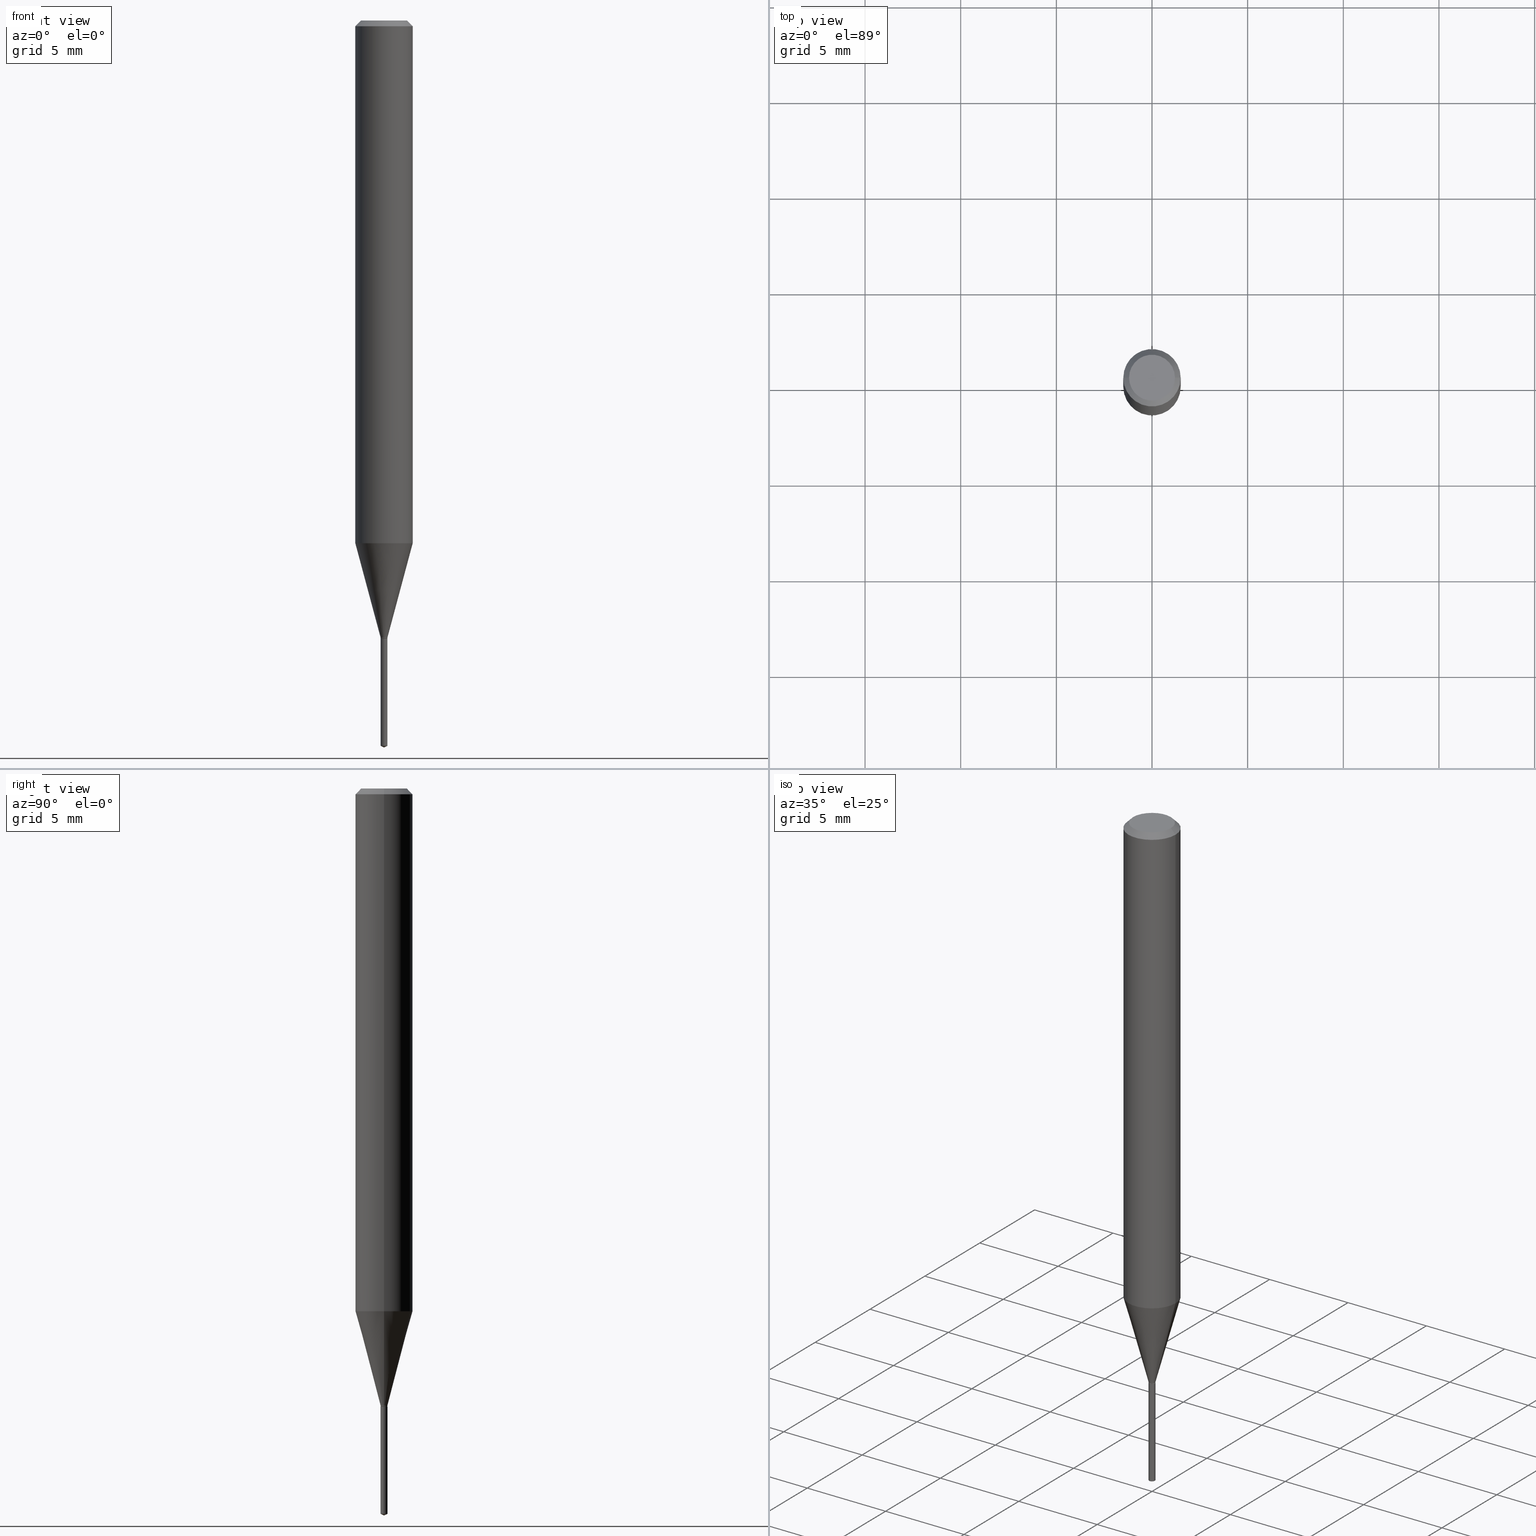
[diagram: canonical four-view strip — front | top / right | iso, engineering-drawing reading convention]
A machine part, canonical four-view strip (front | top / right | iso — engineering-drawing reading convention). The complete STEP part file that produces these views, byte-faithful:
ISO-10303-21;
HEADER;
FILE_DESCRIPTION (( 'STEP AP203' ),
    '1' );
FILE_NAME ('07755.STEP',
    '2024-04-24T02:21:00',
    ( '' ),
    ( '' ),
    'SwSTEP 2.0',
    'SolidWorks 2023',
    '' );
FILE_SCHEMA (( 'CONFIG_CONTROL_DESIGN' ));
ENDSEC;

DATA;
#1 = PLANE ( 'NONE',  #249 ) ;
#2 = CONICAL_SURFACE ( 'NONE', #334, 0.006599999999999999964, 0.7853981633975496424 ) ;
#3 = ORIENTED_EDGE ( 'NONE', *, *, #359, .T. ) ;
#4 = EDGE_CURVE ( 'NONE', #458, #391, #385, .T. ) ;
#5 = APPROVAL_ROLE ( '' ) ;
#6 = DIRECTION ( 'NONE',  ( 1.000000000000000000, -6.982962677686266711E-15, 0.000000000000000000 ) ) ;
#7 = ORIENTED_EDGE ( 'NONE', *, *, #4, .T. ) ;
#8 = DIRECTION ( 'NONE',  ( -2.445468806185136597E-29, 3.491481338843145583E-15, 1.000000000000000000 ) ) ;
#9 = DIRECTION ( 'NONE',  ( -2.445468806185136597E-29, 3.491481338843145583E-15, 1.000000000000000000 ) ) ;
#10 = PERSON_AND_ORGANIZATION ( #418, #379 ) ;
#11 = DIRECTION ( 'NONE',  ( 0.2588190451025213501, 1.565188264969621968E-15, 0.9659258262890682012 ) ) ;
#12 = LENGTH_MEASURE_WITH_UNIT ( LENGTH_MEASURE( 0.02539999999999999897 ), #371 );
#13 = ORIENTED_EDGE ( 'NONE', *, *, #37, .T. ) ;
#14 = LINE ( 'NONE', #215, #100 ) ;
#15 = PLANE ( 'NONE',  #252 ) ;
#16 = ORIENTED_EDGE ( 'NONE', *, *, #239, .T. ) ;
#17 = CIRCLE ( 'NONE', #293, 0.007100000000000000408 ) ;
#18 = VECTOR ( 'NONE', #11, 39.37007874015747433 ) ;
#19 = CARTESIAN_POINT ( 'NONE',  ( 5.044853423900365638E-17, 0.007099999999995559516, -1.271700000000000053 ) ) ;
#20 = CYLINDRICAL_SURFACE ( 'NONE', #74, 0.007100000000000000408 ) ;
#21 = VERTEX_POINT ( 'NONE', #59 ) ;
#22 = CARTESIAN_POINT ( 'NONE',  ( 0.006599999999999999964, -4.486204372279557365E-15, -1.271700000000000053 ) ) ;
#23 = AXIS2_PLACEMENT_3D ( 'NONE', #49, #174, #237 ) ;
#24 = EDGE_CURVE ( 'NONE', #92, #314, #276, .T. ) ;
#25 = DATE_AND_TIME ( #102, #36 ) ;
#26 = DIRECTION ( 'NONE',  ( -2.445468806185136597E-29, 3.491481338843145583E-15, 1.000000000000000000 ) ) ;
#27 = APPROVAL_PERSON_ORGANIZATION ( #77, #64, #172 ) ;
#28 = DIRECTION ( 'NONE',  ( -6.982962677686267499E-15, -1.000000000000000000, 3.520397390770578510E-15 ) ) ;
#29 = DIRECTION ( 'NONE',  ( -2.438088387897960049E-29, 3.491481338843145188E-15, 1.000000000000000000 ) ) ;
#30 = ADVANCED_FACE ( 'NONE', ( #108 ), #442, .T. ) ;
#31 = FACE_OUTER_BOUND ( 'NONE', #361, .T. ) ;
#32 = APPLICATION_CONTEXT ( 'configuration controlled 3d designs of mechanical parts and assemblies' ) ;
#33 = CARTESIAN_POINT ( 'NONE',  ( 3.109902680825638129E-29, -4.440116818606828093E-15, -1.271700000000000053 ) ) ;
#34 = CIRCLE ( 'NONE', #186, 0.007100000000000000408 ) ;
#35 = EDGE_CURVE ( 'NONE', #314, #21, #280, .T. ) ;
#36 = LOCAL_TIME ( 22, 21, 0.000000000000000000, #315 ) ;
#37 = EDGE_CURVE ( 'NONE', #171, #458, #98, .T. ) ;
#38 = DIRECTION ( 'NONE',  ( -2.445468806185136597E-29, 3.491481338843145583E-15, 1.000000000000000000 ) ) ;
#39 = ORIENTED_EDGE ( 'NONE', *, *, #184, .T. ) ;
#40 = EDGE_CURVE ( 'NONE', #391, #92, #309, .T. ) ;
#41 = ADVANCED_BREP_SHAPE_REPRESENTATION ( '07755', ( #311, #327, #217 ), #387 ) ;
#42 = PERSON_AND_ORGANIZATION ( #418, #379 ) ;
#43 = CIRCLE ( 'NONE', #106, 0.007100000000000000408 ) ;
#44 = AXIS2_PLACEMENT_3D ( 'NONE', #490, #426, #158 ) ;
#45 = DIRECTION ( 'NONE',  ( -0.2588190451025213501, 5.211531920934551042E-15, 0.9659258262890682012 ) ) ;
#46 = DIRECTION ( 'NONE',  ( 1.000000000000000000, -6.982962677686215435E-15, 0.000000000000000000 ) ) ;
#47 = DIRECTION ( 'NONE',  ( -6.982962677686265922E-15, -1.000000000000000000, 0.000000000000000000 ) ) ;
#48 = VERTEX_POINT ( 'NONE', #120 ) ;
#49 = CARTESIAN_POINT ( 'NONE',  ( 8.265746106709734507E-48, -1.180129479067563789E-33, -3.380025165646692144E-19 ) ) ;
#50 = LINE ( 'NONE', #135, #335 ) ;
#51 = ORIENTED_EDGE ( 'NONE', *, *, #425, .F. ) ;
#52 = CARTESIAN_POINT ( 'NONE',  ( 3.104767196332649259E-29, -4.432784707795257778E-15, -1.269600000000000062 ) ) ;
#53 = CARTESIAN_POINT ( 'NONE',  ( 2.888098660104663766E-31, -4.123439461173779647E-17, -0.01181000000000007044 ) ) ;
#54 = ORIENTED_EDGE ( 'NONE', *, *, #408, .F. ) ;
#55 = AXIS2_PLACEMENT_3D ( 'NONE', #469, #58, #332 ) ;
#56 = APPROVAL_DATE_TIME ( #202, #64 ) ;
#57 = DIRECTION ( 'NONE',  ( -2.445468806185136597E-29, 3.491481338843145583E-15, 1.000000000000000000 ) ) ;
#58 = DIRECTION ( 'NONE',  ( -2.445451076271118923E-29, 3.491506729089142946E-15, 1.000000000000000000 ) ) ;
#59 = CARTESIAN_POINT ( 'NONE',  ( 0.05905000000000013710, -4.168200114187600418E-15, -1.075719960546796861 ) ) ;
#60 = CC_DESIGN_PERSON_AND_ORGANIZATION_ASSIGNMENT ( #42, #355, ( #271 ) ) ;
#61 = VECTOR ( 'NONE', #220, 39.37007874015748143 ) ;
#62 = AXIS2_PLACEMENT_3D ( 'NONE', #390, #370, #356 ) ;
#63 = DIMENSIONAL_EXPONENTS ( 1.000000000000000000, 0.000000000000000000, 0.000000000000000000, 0.000000000000000000, 0.000000000000000000, 0.000000000000000000, 0.000000000000000000 ) ;
#64 = APPROVAL ( #350, 'UNSPECIFIED' ) ;
#65 = CARTESIAN_POINT ( 'NONE',  ( -4.957903501154139640E-17, -0.007100000000004440433, -1.271700000000000053 ) ) ;
#66 = PERSON_AND_ORGANIZATION_ROLE ( 'creator' ) ;
#67 = ORIENTED_EDGE ( 'NONE', *, *, #440, .F. ) ;
#68 = DIRECTION ( 'NONE',  ( -2.445468806185136597E-29, 3.491481338843145583E-15, 1.000000000000000000 ) ) ;
#69 = LINE ( 'NONE', #226, #383 ) ;
#70 = DIRECTION ( 'NONE',  ( 1.000000000000000000, -6.982962677686215435E-15, 0.000000000000000000 ) ) ;
#71 = PRODUCT ( '07755', '07755', '', ( #246 ) ) ;
#72 = APPROVAL_DATE_TIME ( #342, #268 ) ;
#73 = VERTEX_POINT ( 'NONE', #305 ) ;
#74 = AXIS2_PLACEMENT_3D ( 'NONE', #460, #431, #47 ) ;
#75 = EDGE_LOOP ( 'NONE', ( #212, #432 ) ) ;
#76 = PRODUCT_DEFINITION_SHAPE ( 'NONE', 'NONE',  #286 ) ;
#77 = PERSON_AND_ORGANIZATION ( #418, #379 ) ;
#78 = ADVANCED_FACE ( 'NONE', ( #273 ), #421, .T. ) ;
#79 = ORIENTED_EDGE ( 'NONE', *, *, #411, .T. ) ;
#80 = CARTESIAN_POINT ( 'NONE',  ( 3.108679946422545888E-29, -4.438371077937407378E-15, -1.271200000000000108 ) ) ;
#81 = EDGE_LOOP ( 'NONE', ( #54, #16, #7, #346 ) ) ;
#82 = CARTESIAN_POINT ( 'NONE',  ( -0.05905000000000013710, -3.336280682603885216E-15, -1.075719960546796861 ) ) ;
#83 = FACE_OUTER_BOUND ( 'NONE', #384, .T. ) ;
#84 = VECTOR ( 'NONE', #175, 39.37007874015748143 ) ;
#85 =( NAMED_UNIT ( * ) SI_UNIT ( $, .STERADIAN. ) SOLID_ANGLE_UNIT ( ) );
#86 = EDGE_LOOP ( 'NONE', ( #157, #424, #79, #397 ) ) ;
#87 = EDGE_CURVE ( 'NONE', #263, #151, #104, .T. ) ;
#88 = DIRECTION ( 'NONE',  ( 2.445451076271118923E-29, -3.491506729089142552E-15, -1.000000000000000000 ) ) ;
#89 = EDGE_LOOP ( 'NONE', ( #193, #124, #232 ) ) ;
#90 = CC_DESIGN_PERSON_AND_ORGANIZATION_ASSIGNMENT ( #345, #146, ( #71 ) ) ;
#91 = DATE_AND_TIME ( #210, #439 ) ;
#92 = VERTEX_POINT ( 'NONE', #413 ) ;
#93 = FACE_OUTER_BOUND ( 'NONE', #75, .T. ) ;
#94 =( NAMED_UNIT ( * ) PLANE_ANGLE_UNIT ( ) SI_UNIT ( $, .RADIAN. ) );
#95 = EDGE_LOOP ( 'NONE', ( #317, #288, #481, #285 ) ) ;
#96 = CONICAL_SURFACE ( 'NONE', #255, 84.42940631927135087, 1.134464013796302462 ) ;
#97 = CC_DESIGN_APPROVAL ( #64, ( #271 ) ) ;
#98 = LINE ( 'NONE', #22, #61 ) ;
#99 = DIRECTION ( 'NONE',  ( -2.445468806185136877E-29, 3.491481338843145188E-15, 1.000000000000000000 ) ) ;
#100 = VECTOR ( 'NONE', #369, 39.37007874015748143 ) ;
#101 = VECTOR ( 'NONE', #434, 39.37007874015748143 ) ;
#102 = CALENDAR_DATE ( 2024, 23, 4 ) ;
#103 = ADVANCED_FACE ( 'NONE', ( #31 ), #192, .F. ) ;
#104 = LINE ( 'NONE', #147, #466 ) ;
#105 = ORIENTED_EDGE ( 'NONE', *, *, #341, .F. ) ;
#106 = AXIS2_PLACEMENT_3D ( 'NONE', #80, #122, #242 ) ;
#107 = AXIS2_PLACEMENT_3D ( 'NONE', #270, #485, #143 ) ;
#108 = FACE_OUTER_BOUND ( 'NONE', #265, .T. ) ;
#109 = ORIENTED_EDGE ( 'NONE', *, *, #110, .T. ) ;
#110 = EDGE_CURVE ( 'NONE', #458, #479, #43, .T. ) ;
#111 = CARTESIAN_POINT ( 'NONE',  ( -0.007100000000000000408, -4.385129358627364316E-15, -1.271200000000000108 ) ) ;
#112 = CARTESIAN_POINT ( 'NONE',  ( 3.104767196332649259E-29, -4.432784707795257778E-15, -1.269600000000000062 ) ) ;
#113 = VERTEX_POINT ( 'NONE', #389 ) ;
#114 = DIRECTION ( 'NONE',  ( -6.982962677686267499E-15, -1.000000000000000000, 3.520397390770578510E-15 ) ) ;
#115 = FACE_OUTER_BOUND ( 'NONE', #372, .T. ) ;
#116 = FACE_OUTER_BOUND ( 'NONE', #414, .T. ) ;
#117 = CIRCLE ( 'NONE', #23, 0.04724000000000000421 ) ;
#118 = CALENDAR_DATE ( 2024, 23, 4 ) ;
#119 = CIRCLE ( 'NONE', #107, 0.007100000000000000408 ) ;
#120 = CARTESIAN_POINT ( 'NONE',  ( -0.04724000000000000421, 3.504923541997677355E-16, -3.380025165670481712E-19 ) ) ;
#121 = ORIENTED_EDGE ( 'NONE', *, *, #35, .T. ) ;
#122 = DIRECTION ( 'NONE',  ( -2.445468806185136597E-29, 3.491481338843145583E-15, 1.000000000000000000 ) ) ;
#123 = LINE ( 'NONE', #132, #18 ) ;
#124 = ORIENTED_EDGE ( 'NONE', *, *, #484, .T. ) ;
#125 = CONICAL_SURFACE ( 'NONE', #336, 84.42940631927135087, 1.134464013796302462 ) ;
#126 = DIRECTION ( 'NONE',  ( 1.000000000000000000, 0.000000000000000000, 0.000000000000000000 ) ) ;
#127 = VERTEX_POINT ( 'NONE', #169 ) ;
#128 = EDGE_CURVE ( 'NONE', #113, #48, #117, .T. ) ;
#129 = ORIENTED_EDGE ( 'NONE', *, *, #443, .T. ) ;
#130 = ORIENTED_EDGE ( 'NONE', *, *, #37, .F. ) ;
#131 = CARTESIAN_POINT ( 'NONE',  ( 3.109902680825638129E-29, -4.440116818606828093E-15, -1.271700000000000053 ) ) ;
#132 = CARTESIAN_POINT ( 'NONE',  ( 0.007100000000000000408, -4.482363742806830057E-15, -1.269600000000000062 ) ) ;
#133 = ORIENTED_EDGE ( 'NONE', *, *, #484, .F. ) ;
#134 = CC_DESIGN_PERSON_AND_ORGANIZATION_ASSIGNMENT ( #10, #464, ( #271 ) ) ;
#135 = CARTESIAN_POINT ( 'NONE',  ( 0.05905000000000006771, -4.123439461173745257E-16, 2.879382386107503723E-30 ) ) ;
#136 = VECTOR ( 'NONE', #155, 39.37007874015748143 ) ;
#137 = LOCAL_TIME ( 22, 21, 0.000000000000000000, #420 ) ;
#138 = AXIS2_PLACEMENT_3D ( 'NONE', #412, #68, #190 ) ;
#139 = EDGE_CURVE ( 'NONE', #357, #148, #299, .T. ) ;
#140 = CONICAL_SURFACE ( 'NONE', #300, 0.006599999999999999964, 0.7853981633975496424 ) ;
#141 = EDGE_CURVE ( 'NONE', #151, #142, #14, .T. ) ;
#142 = VERTEX_POINT ( 'NONE', #19 ) ;
#143 = DIRECTION ( 'NONE',  ( -6.982962677686265922E-15, -1.000000000000000000, 0.000000000000000000 ) ) ;
#144 = CARTESIAN_POINT ( 'NONE',  ( 0.006599999999999999964, -4.486204372279557365E-15, -1.271700000000000053 ) ) ;
#145 = ADVANCED_FACE ( 'NONE', ( #329 ), #2, .T. ) ;
#146 = PERSON_AND_ORGANIZATION_ROLE ( 'design_owner' ) ;
#147 = CARTESIAN_POINT ( 'NONE',  ( 3.658684844895993065E-29, -5.223578639838595725E-15, -1.496099999999999985 ) ) ;
#148 = VERTEX_POINT ( 'NONE', #227 ) ;
#149 = DIRECTION ( 'NONE',  ( 1.000000000000000000, -6.982962677686215435E-15, 0.000000000000000000 ) ) ;
#150 = DIRECTION ( 'NONE',  ( -2.445451076271118923E-29, 3.491506729089142946E-15, 1.000000000000000000 ) ) ;
#151 = VERTEX_POINT ( 'NONE', #294 ) ;
#152 = DIRECTION ( 'NONE',  ( -6.328713451373333880E-15, -0.9063077870366434974, 0.4226182617407132636 ) ) ;
#153 = APPROVAL_STATUS ( 'not_yet_approved' ) ;
#154 = DIRECTION ( 'NONE',  ( 1.000000000000000000, -6.982962677686265922E-15, 4.876176775795935793E-29 ) ) ;
#155 = DIRECTION ( 'NONE',  ( 0.7071067811865453523, -7.319954787623248157E-15, -0.7071067811865496822 ) ) ;
#156 = CALENDAR_DATE ( 2024, 23, 4 ) ;
#157 = ORIENTED_EDGE ( 'NONE', *, *, #184, .F. ) ;
#158 = DIRECTION ( 'NONE',  ( 1.000000000000000000, -6.982962677686266711E-15, 4.876176775795935793E-29 ) ) ;
#159 = ADVANCED_FACE ( 'NONE', ( #480 ), #125, .T. ) ;
#160 = AXIS2_PLACEMENT_3D ( 'NONE', #52, #38, #209 ) ;
#161 = SECURITY_CLASSIFICATION ( '', '', #468 ) ;
#162 = CONICAL_SURFACE ( 'NONE', #401, 0.05904999999999999832, 0.7853981633974452814 ) ;
#163 = CARTESIAN_POINT ( 'NONE',  ( 0.000000000000000000, 0.000000000000000000, 0.000000000000000000 ) ) ;
#164 = EDGE_LOOP ( 'NONE', ( #283, #274, #195, #301 ) ) ;
#165 = DIRECTION ( 'NONE',  ( 1.000000000000000000, -6.982962677686265133E-15, 0.000000000000000000 ) ) ;
#166 = PERSON_AND_ORGANIZATION ( #418, #379 ) ;
#167 = ORIENTED_EDGE ( 'NONE', *, *, #476, .T. ) ;
#168 = DIRECTION ( 'NONE',  ( 1.000000000000000000, -6.982962677686265133E-15, 0.000000000000000000 ) ) ;
#169 = CARTESIAN_POINT ( 'NONE',  ( -0.006599999999999999964, -4.390571770872550711E-15, -1.271700000000000053 ) ) ;
#170 = CARTESIAN_POINT ( 'NONE',  ( 2.888098660104663766E-31, -4.123439461173779647E-17, -0.01181000000000007044 ) ) ;
#171 = VERTEX_POINT ( 'NONE', #144 ) ;
#172 = APPROVAL_ROLE ( '' ) ;
#173 = AXIS2_PLACEMENT_3D ( 'NONE', #269, #347, #489 ) ;
#174 = DIRECTION ( 'NONE',  ( -2.445468806185136597E-29, 3.491481338843145583E-15, 1.000000000000000000 ) ) ;
#175 = DIRECTION ( 'NONE',  ( -0.7071067811865453523, 2.468850131082234184E-15, -0.7071067811865496822 ) ) ;
#176 = CONICAL_SURFACE ( 'NONE', #441, 0.05904999999999999832, 0.7853981633974452814 ) ;
#177 = ORIENTED_EDGE ( 'NONE', *, *, #206, .F. ) ;
#178 = CALENDAR_DATE ( 2024, 23, 4 ) ;
#179 = ORIENTED_EDGE ( 'NONE', *, *, #236, .T. ) ;
#180 = ADVANCED_FACE ( 'NONE', ( #454 ), #231, .T. ) ;
#181 = DIRECTION ( 'NONE',  ( -2.445468806185136597E-29, 3.491481338843145583E-15, 1.000000000000000000 ) ) ;
#182 = AXIS2_PLACEMENT_3D ( 'NONE', #163, #234, #338 ) ;
#183 = LOCAL_TIME ( 22, 21, 0.000000000000000000, #452 ) ;
#184 = EDGE_CURVE ( 'NONE', #113, #357, #416, .T. ) ;
#185 = ADVANCED_FACE ( 'NONE', ( #116 ), #1, .F. ) ;
#186 = AXIS2_PLACEMENT_3D ( 'NONE', #33, #229, #194 ) ;
#187 = CC_DESIGN_APPROVAL ( #268, ( #286 ) ) ;
#188 = DIRECTION ( 'NONE',  ( -2.445468806185136597E-29, 3.491481338843145583E-15, 1.000000000000000000 ) ) ;
#189 = DIRECTION ( 'NONE',  ( 1.000000000000000000, -6.982962677686291954E-15, 0.000000000000000000 ) ) ;
#190 = DIRECTION ( 'NONE',  ( 1.000000000000000000, -6.982962677686266711E-15, 4.876185090822587894E-29 ) ) ;
#191 = APPLICATION_PROTOCOL_DEFINITION ( 'international standard', 'config_control_design', 1994, #32 ) ;
#192 = PLANE ( 'NONE',  #258 ) ;
#193 = ORIENTED_EDGE ( 'NONE', *, *, #87, .F. ) ;
#194 = DIRECTION ( 'NONE',  ( -6.982962677686265922E-15, -1.000000000000000000, 0.000000000000000000 ) ) ;
#195 = ORIENTED_EDGE ( 'NONE', *, *, #139, .F. ) ;
#196 = ADVANCED_FACE ( 'NONE', ( #257 ), #96, .T. ) ;
#197 = CYLINDRICAL_SURFACE ( 'NONE', #44, 0.007100000000000000408 ) ;
#198 = DIRECTION ( 'NONE',  ( 1.000000000000000000, -6.982962677686215435E-15, 0.000000000000000000 ) ) ;
#199 = ORIENTED_EDGE ( 'NONE', *, *, #365, .F. ) ;
#200 = AXIS2_PLACEMENT_3D ( 'NONE', #240, #8, #475 ) ;
#201 = CC_DESIGN_APPROVAL ( #488, ( #161 ) ) ;
#202 = DATE_AND_TIME ( #178, #310 ) ;
#203 = DIRECTION ( 'NONE',  ( -0.7071067811866191821, 7.493145998870612907E-15, 0.7071067811864758523 ) ) ;
#204 = ORIENTED_EDGE ( 'NONE', *, *, #139, .T. ) ;
#205 = DIRECTION ( 'NONE',  ( -2.445468806185136597E-29, 3.491481338843145583E-15, 1.000000000000000000 ) ) ;
#206 = EDGE_CURVE ( 'NONE', #235, #142, #34, .T. ) ;
#207 = LINE ( 'NONE', #330, #353 ) ;
#208 = EDGE_LOOP ( 'NONE', ( #199, #465, #13, #244 ) ) ;
#209 = DIRECTION ( 'NONE',  ( 1.000000000000000000, -6.982962677686291954E-15, 0.000000000000000000 ) ) ;
#210 = CALENDAR_DATE ( 2024, 23, 4 ) ;
#211 = DIRECTION ( 'NONE',  ( -2.445468806185136597E-29, 3.491481338843145583E-15, 1.000000000000000000 ) ) ;
#212 = ORIENTED_EDGE ( 'NONE', *, *, #206, .T. ) ;
#213 = COORDINATED_UNIVERSAL_TIME_OFFSET ( 5, 0, .BEHIND. ) ;
#214 = AXIS2_PLACEMENT_3D ( 'NONE', #340, #150, #486 ) ;
#215 = CARTESIAN_POINT ( 'NONE',  ( 5.044853423899820215E-17, 0.007099999999995559516, -1.271700000000000053 ) ) ;
#216 = DIRECTION ( 'NONE',  ( 2.445468806185136597E-29, -3.491481338843145583E-15, -1.000000000000000000 ) ) ;
#217 = AXIS2_PLACEMENT_3D ( 'NONE', #321, #396, #126 ) ;
#218 = EDGE_LOOP ( 'NONE', ( #259, #322, #487, #130 ) ) ;
#219 = DIRECTION ( 'NONE',  ( -2.445468806185136597E-29, 3.491481338843145583E-15, 1.000000000000000000 ) ) ;
#220 = DIRECTION ( 'NONE',  ( 0.7071067811866191821, -2.468850131083007662E-15, 0.7071067811864758523 ) ) ;
#221 = AXIS2_PLACEMENT_3D ( 'NONE', #319, #211, #363 ) ;
#222 = APPROVAL_DATE_TIME ( #25, #488 ) ;
#223 = ADVANCED_FACE ( 'NONE', ( #449 ), #228, .T. ) ;
#224 = CC_DESIGN_DATE_AND_TIME_ASSIGNMENT ( #272, #381, ( #286 ) ) ;
#225 = APPROVAL_PERSON_ORGANIZATION ( #278, #488, #5 ) ;
#226 = CARTESIAN_POINT ( 'NONE',  ( 3.658639355209220542E-29, -5.223643217390265926E-15, -1.496099999999999985 ) ) ;
#227 = CARTESIAN_POINT ( 'NONE',  ( -0.05904999999999999832, -1.478969795874641529E-15, -0.01181000000000007044 ) ) ;
#228 = CONICAL_SURFACE ( 'NONE', #400, 0.007100000000000000408, 0.2617993877991500740 ) ;
#229 = DIRECTION ( 'NONE',  ( -2.445451076271118923E-29, 3.491506729089142946E-15, 1.000000000000000000 ) ) ;
#230 = CIRCLE ( 'NONE', #62, 0.007100000000000000408 ) ;
#231 = CYLINDRICAL_SURFACE ( 'NONE', #173, 0.007100000000000000408 ) ;
#232 = ORIENTED_EDGE ( 'NONE', *, *, #476, .F. ) ;
#233 = DIRECTION ( 'NONE',  ( -1.000000000000000000, 6.982962677686266711E-15, 0.000000000000000000 ) ) ;
#234 = DIRECTION ( 'NONE',  ( -2.445468806185136597E-29, 3.491481338843145583E-15, 1.000000000000000000 ) ) ;
#235 = VERTEX_POINT ( 'NONE', #451 ) ;
#236 = EDGE_CURVE ( 'NONE', #73, #235, #337, .T. ) ;
#237 = DIRECTION ( 'NONE',  ( 1.000000000000000000, -6.982962677686266711E-15, 4.876185090822587894E-29 ) ) ;
#238 = CARTESIAN_POINT ( 'NONE',  ( -0.007100000000000000408, -4.382336173556289910E-15, -1.269600000000000062 ) ) ;
#239 = EDGE_CURVE ( 'NONE', #479, #458, #17, .T. ) ;
#240 = CARTESIAN_POINT ( 'NONE',  ( 0.000000000000000000, 0.000000000000000000, 0.000000000000000000 ) ) ;
#241 = APPROVAL_STATUS ( 'not_yet_approved' ) ;
#242 = DIRECTION ( 'NONE',  ( 1.000000000000000000, -6.982962677686291954E-15, 0.000000000000000000 ) ) ;
#243 = DIRECTION ( 'NONE',  ( -1.000000000000000000, 6.982962677686266711E-15, 0.000000000000000000 ) ) ;
#244 = ORIENTED_EDGE ( 'NONE', *, *, #239, .F. ) ;
#245 = UNCERTAINTY_MEASURE_WITH_UNIT (LENGTH_MEASURE( 1.000000000000000082E-05 ), #428, 'distance_accuracy_value', 'NONE');
#246 = MECHANICAL_CONTEXT ( 'NONE', #266, 'mechanical' ) ;
#247 = ORIENTED_EDGE ( 'NONE', *, *, #141, .F. ) ;
#248 = ORIENTED_EDGE ( 'NONE', *, *, #236, .F. ) ;
#249 = AXIS2_PLACEMENT_3D ( 'NONE', #303, #29, #154 ) ;
#250 = CARTESIAN_POINT ( 'NONE',  ( 3.109902680825638129E-29, -4.440116818606828093E-15, -1.271700000000000053 ) ) ;
#251 = EDGE_CURVE ( 'NONE', #48, #113, #368, .T. ) ;
#252 = AXIS2_PLACEMENT_3D ( 'NONE', #250, #88, #402 ) ;
#253 = ORIENTED_EDGE ( 'NONE', *, *, #87, .T. ) ;
#254 = CARTESIAN_POINT ( 'NONE',  ( -0.006599999999999999964, -4.393220998046661912E-15, -1.271700000000000053 ) ) ;
#255 = AXIS2_PLACEMENT_3D ( 'NONE', #407, #377, #28 ) ;
#256 = EDGE_CURVE ( 'NONE', #142, #235, #417, .T. ) ;
#257 = FACE_OUTER_BOUND ( 'NONE', #89, .T. ) ;
#258 = AXIS2_PLACEMENT_3D ( 'NONE', #483, #433, #394 ) ;
#259 = ORIENTED_EDGE ( 'NONE', *, *, #341, .T. ) ;
#260 = DIRECTION ( 'NONE',  ( -2.445468806185136597E-29, 3.491481338843145583E-15, 1.000000000000000000 ) ) ;
#261 = DIRECTION ( 'NONE',  ( 1.000000000000000000, -6.982962677686291954E-15, 0.000000000000000000 ) ) ;
#262 = DIRECTION ( 'NONE',  ( 6.439704144416989332E-15, 0.9063077870366463840, 0.4226182617407069908 ) ) ;
#263 = VERTEX_POINT ( 'NONE', #267 ) ;
#264 = ADVANCED_FACE ( 'NONE', ( #415 ), #459, .T. ) ;
#265 = EDGE_LOOP ( 'NONE', ( #51, #121, #129, #470 ) ) ;
#266 = APPLICATION_CONTEXT ( 'configuration controlled 3d designs of mechanical parts and assemblies' ) ;
#267 = CARTESIAN_POINT ( 'NONE',  ( 3.658639355209220542E-29, -5.223643217390265926E-15, -1.496099999999999985 ) ) ;
#268 = APPROVAL ( #153, 'UNSPECIFIED' ) ;
#269 = CARTESIAN_POINT ( 'NONE',  ( 0.000000000000000000, 0.000000000000000000, 0.000000000000000000 ) ) ;
#270 = CARTESIAN_POINT ( 'NONE',  ( 3.650565541132865104E-29, -5.212051302697885877E-15, -1.492789215627099431 ) ) ;
#271 = PRODUCT_DEFINITION_FORMATION_WITH_SPECIFIED_SOURCE ( 'ANY', '', #71, .NOT_KNOWN. ) ;
#272 = DATE_AND_TIME ( #156, #183 ) ;
#273 = FACE_OUTER_BOUND ( 'NONE', #164, .T. ) ;
#274 = ORIENTED_EDGE ( 'NONE', *, *, #425, .T. ) ;
#275 = ADVANCED_FACE ( 'NONE', ( #354 ), #378, .T. ) ;
#276 = LINE ( 'NONE', #238, #477 ) ;
#277 = CARTESIAN_POINT ( 'NONE',  ( 2.888098660104663766E-31, -4.123439461173779647E-17, -0.01181000000000007044 ) ) ;
#278 = PERSON_AND_ORGANIZATION ( #418, #379 ) ;
#279 = ORIENTED_EDGE ( 'NONE', *, *, #40, .F. ) ;
#280 = CIRCLE ( 'NONE', #289, 0.05905000000000013016 ) ;
#281 = AXIS2_PLACEMENT_3D ( 'NONE', #376, #260, #149 ) ;
#282 = APPLICATION_PROTOCOL_DEFINITION ( 'international standard', 'config_control_design', 1994, #266 ) ;
#283 = ORIENTED_EDGE ( 'NONE', *, *, #349, .T. ) ;
#284 = CARTESIAN_POINT ( 'NONE',  ( -0.05904999999999999832, 3.711095515056362547E-16, -0.01181000000000007044 ) ) ;
#285 = ORIENTED_EDGE ( 'NONE', *, *, #359, .F. ) ;
#286 = PRODUCT_DEFINITION ( 'UNKNOWN', '', #271, #405 ) ;
#287 = LINE ( 'NONE', #284, #84 ) ;
#288 = ORIENTED_EDGE ( 'NONE', *, *, #24, .T. ) ;
#289 = AXIS2_PLACEMENT_3D ( 'NONE', #307, #205, #165 ) ;
#290 = AXIS2_PLACEMENT_3D ( 'NONE', #463, #388, #46 ) ;
#291 = LINE ( 'NONE', #254, #343 ) ;
#292 = ADVANCED_FACE ( 'NONE', ( #367 ), #176, .T. ) ;
#293 = AXIS2_PLACEMENT_3D ( 'NONE', #344, #445, #261 ) ;
#294 = CARTESIAN_POINT ( 'NONE',  ( 5.044853423900360708E-17, 0.007099999999994785829, -1.492789215627099431 ) ) ;
#295 = ORIENTED_EDGE ( 'NONE', *, *, #128, .F. ) ;
#296 = DIRECTION ( 'NONE',  ( -2.445451076271118643E-29, 3.491506729089142552E-15, 1.000000000000000000 ) ) ;
#297 = DIRECTION ( 'NONE',  ( -2.445451076271118923E-29, 3.491506729089142946E-15, 1.000000000000000000 ) ) ;
#298 = APPROVAL_ROLE ( '' ) ;
#299 = CIRCLE ( 'NONE', #221, 0.05904999999999999832 ) ;
#300 = AXIS2_PLACEMENT_3D ( 'NONE', #320, #188, #198 ) ;
#301 = ORIENTED_EDGE ( 'NONE', *, *, #443, .F. ) ;
#302 = ADVANCED_FACE ( 'NONE', ( #115 ), #197, .T. ) ;
#303 = CARTESIAN_POINT ( 'NONE',  ( 3.109902680825638129E-29, -4.440116818606828093E-15, -1.271700000000000053 ) ) ;
#304 = CARTESIAN_POINT ( 'NONE',  ( 0.05904999999999999832, -4.463468013801466955E-16, -0.01181000000000007044 ) ) ;
#305 = CARTESIAN_POINT ( 'NONE',  ( -4.957903501153596682E-17, -0.007100000000005210650, -1.492789215627099431 ) ) ;
#306 = ORIENTED_EDGE ( 'NONE', *, *, #128, .T. ) ;
#307 = CARTESIAN_POINT ( 'NONE',  ( 2.630639607707897401E-29, -3.755856168070225498E-15, -1.075719960546796861 ) ) ;
#308 = AXIS2_PLACEMENT_3D ( 'NONE', #358, #423, #398 ) ;
#309 = CIRCLE ( 'NONE', #473, 0.007100000000000000408 ) ;
#310 = LOCAL_TIME ( 22, 21, 0.000000000000000000, #213 ) ;
#311 = MANIFOLD_SOLID_BREP ( 'Body-Move/Copy2[1]', #352 ) ;
#312 = CC_DESIGN_PERSON_AND_ORGANIZATION_ASSIGNMENT ( #348, #66, ( #286 ) ) ;
#313 = CARTESIAN_POINT ( 'NONE',  ( 0.007100000000000000408, -4.487950112948979657E-15, -1.271200000000000108 ) ) ;
#314 = VERTEX_POINT ( 'NONE', #82 ) ;
#315 = COORDINATED_UNIVERSAL_TIME_OFFSET ( 5, 0, .BEHIND. ) ;
#316 = CARTESIAN_POINT ( 'NONE',  ( 0.007100000000000000408, -4.482363742806830057E-15, -1.269600000000000062 ) ) ;
#317 = ORIENTED_EDGE ( 'NONE', *, *, #40, .T. ) ;
#318 = CARTESIAN_POINT ( 'NONE',  ( 2.630639607707897401E-29, -3.755856168070225498E-15, -1.075719960546796861 ) ) ;
#319 = CARTESIAN_POINT ( 'NONE',  ( 2.888098660104663766E-31, -4.123439461173779647E-17, -0.01181000000000007044 ) ) ;
#320 = CARTESIAN_POINT ( 'NONE',  ( 3.109902680825638129E-29, -4.440116818606828093E-15, -1.271700000000000053 ) ) ;
#321 = CARTESIAN_POINT ( 'NONE',  ( 0.000000000000000000, 0.000000000000000000, 0.000000000000000000 ) ) ;
#322 = ORIENTED_EDGE ( 'NONE', *, *, #365, .T. ) ;
#323 = VECTOR ( 'NONE', #296, 39.37007874015748143 ) ;
#324 = CC_DESIGN_SECURITY_CLASSIFICATION ( #161, ( #271 ) ) ;
#325 = CARTESIAN_POINT ( 'NONE',  ( -0.05905000000000006771, 4.195754854663396409E-16, -2.904631170795525045E-30 ) ) ;
#326 = ORIENTED_EDGE ( 'NONE', *, *, #382, .T. ) ;
#327 = MANIFOLD_SOLID_BREP ( 'Body-Move/Copy2[2]', #455 ) ;
#328 = PRODUCT_RELATED_PRODUCT_CATEGORY ( 'detail', '', ( #71 ) ) ;
#329 = FACE_OUTER_BOUND ( 'NONE', #218, .T. ) ;
#330 = CARTESIAN_POINT ( 'NONE',  ( -0.007100000000000000408, 5.044853423896711610E-17, -3.492443914080983296E-31 ) ) ;
#331 = CARTESIAN_POINT ( 'NONE',  ( 0.007100000000000000408, -4.957903501157249478E-17, 3.462085510815114634E-31 ) ) ;
#332 = DIRECTION ( 'NONE',  ( -6.982962677686265922E-15, -1.000000000000000000, 0.000000000000000000 ) ) ;
#333 = DIRECTION ( 'NONE',  ( 1.000000000000000000, -6.982962677686291954E-15, 0.000000000000000000 ) ) ;
#334 = AXIS2_PLACEMENT_3D ( 'NONE', #131, #57, #70 ) ;
#335 = VECTOR ( 'NONE', #99, 39.37007874015748143 ) ;
#336 = AXIS2_PLACEMENT_3D ( 'NONE', #446, #297, #114 ) ;
#337 = LINE ( 'NONE', #65, #323 ) ;
#338 = DIRECTION ( 'NONE',  ( 1.000000000000000000, -6.982962677686266711E-15, 4.876176775795936353E-29 ) ) ;
#339 = ORIENTED_EDGE ( 'NONE', *, *, #440, .T. ) ;
#340 = CARTESIAN_POINT ( 'NONE',  ( 3.109902680825638129E-29, -4.440116818606828093E-15, -1.271700000000000053 ) ) ;
#341 = EDGE_CURVE ( 'NONE', #171, #127, #380, .T. ) ;
#342 = DATE_AND_TIME ( #118, #137 ) ;
#343 = VECTOR ( 'NONE', #203, 39.37007874015748143 ) ;
#344 = CARTESIAN_POINT ( 'NONE',  ( 3.108679946422545888E-29, -4.438371077937407378E-15, -1.271200000000000108 ) ) ;
#345 = PERSON_AND_ORGANIZATION ( #418, #379 ) ;
#346 = ORIENTED_EDGE ( 'NONE', *, *, #382, .F. ) ;
#347 = DIRECTION ( 'NONE',  ( -2.445468806185136597E-29, 3.491481338843145583E-15, 1.000000000000000000 ) ) ;
#348 = PERSON_AND_ORGANIZATION ( #418, #379 ) ;
#349 = EDGE_CURVE ( 'NONE', #21, #314, #482, .T. ) ;
#350 = APPROVAL_STATUS ( 'not_yet_approved' ) ;
#351 = ORIENTED_EDGE ( 'NONE', *, *, #478, .F. ) ;
#352 = CLOSED_SHELL ( 'NONE', ( #264, #159, #196, #404, #419 ) ) ;
#353 = VECTOR ( 'NONE', #437, 39.37007874015748143 ) ;
#354 = FACE_OUTER_BOUND ( 'NONE', #462, .T. ) ;
#355 = PERSON_AND_ORGANIZATION_ROLE ( 'design_supplier' ) ;
#356 = DIRECTION ( 'NONE',  ( 1.000000000000000000, -6.982962677686291954E-15, 0.000000000000000000 ) ) ;
#357 = VERTEX_POINT ( 'NONE', #471 ) ;
#358 = CARTESIAN_POINT ( 'NONE',  ( 3.109902680825638129E-29, -4.440116818606828093E-15, -1.271700000000000053 ) ) ;
#359 = EDGE_CURVE ( 'NONE', #391, #21, #123, .T. ) ;
#360 = FACE_OUTER_BOUND ( 'NONE', #208, .T. ) ;
#361 = EDGE_LOOP ( 'NONE', ( #450, #306 ) ) ;
#362 = DIRECTION ( 'NONE',  ( 2.445468806185136597E-29, -3.491481338843145583E-15, -1.000000000000000000 ) ) ;
#363 = DIRECTION ( 'NONE',  ( 1.000000000000000000, -6.982962677686266711E-15, 0.000000000000000000 ) ) ;
#364 = FACE_OUTER_BOUND ( 'NONE', #472, .T. ) ;
#365 = EDGE_CURVE ( 'NONE', #127, #479, #291, .T. ) ;
#366 = EDGE_LOOP ( 'NONE', ( #133, #253, #67 ) ) ;
#367 = FACE_OUTER_BOUND ( 'NONE', #86, .T. ) ;
#368 = CIRCLE ( 'NONE', #138, 0.04724000000000000421 ) ;
#369 = DIRECTION ( 'NONE',  ( -2.445451076271118643E-29, 3.491506729089142552E-15, 1.000000000000000000 ) ) ;
#370 = DIRECTION ( 'NONE',  ( -2.445468806185136597E-29, 3.491481338843145583E-15, 1.000000000000000000 ) ) ;
#371 =( LENGTH_UNIT ( ) NAMED_UNIT ( * ) SI_UNIT ( $, .METRE. ) );
#372 = EDGE_LOOP ( 'NONE', ( #109, #429, #279, #422 ) ) ;
#373 = CARTESIAN_POINT ( 'NONE',  ( 3.104767196332649259E-29, -4.432784707795257778E-15, -1.269600000000000062 ) ) ;
#374 = SHAPE_DEFINITION_REPRESENTATION ( #76, #41 ) ;
#375 = ADVANCED_FACE ( 'NONE', ( #83 ), #162, .T. ) ;
#376 = CARTESIAN_POINT ( 'NONE',  ( 3.109902680825638129E-29, -4.440116818606828093E-15, -1.271700000000000053 ) ) ;
#377 = DIRECTION ( 'NONE',  ( -2.445451076271118923E-29, 3.491506729089142946E-15, 1.000000000000000000 ) ) ;
#378 = CONICAL_SURFACE ( 'NONE', #160, 0.007100000000000000408, 0.2617993877991500740 ) ;
#379 = ORGANIZATION ( 'UNSPECIFIED', 'UNSPECIFIED', '' ) ;
#380 = CIRCLE ( 'NONE', #290, 0.006599999999999999964 ) ;
#381 = DATE_TIME_ROLE ( 'creation_date' ) ;
#382 = EDGE_CURVE ( 'NONE', #92, #391, #230, .T. ) ;
#383 = VECTOR ( 'NONE', #152, 39.37007874015748143 ) ;
#384 = EDGE_LOOP ( 'NONE', ( #295, #39, #204, #448 ) ) ;
#385 = LINE ( 'NONE', #331, #386 ) ;
#386 = VECTOR ( 'NONE', #403, 39.37007874015748143 ) ;
#387 =( GEOMETRIC_REPRESENTATION_CONTEXT ( 3 ) GLOBAL_UNCERTAINTY_ASSIGNED_CONTEXT ( ( #245 ) ) GLOBAL_UNIT_ASSIGNED_CONTEXT ( ( #428, #94, #85 ) ) REPRESENTATION_CONTEXT ( 'NONE', 'WORKASPACE' ) );
#388 = DIRECTION ( 'NONE',  ( -2.445468806185136597E-29, 3.491481338843145583E-15, 1.000000000000000000 ) ) ;
#389 = CARTESIAN_POINT ( 'NONE',  ( 0.04724000000000000421, -3.852183633974369345E-16, -3.380025165621689721E-19 ) ) ;
#390 = CARTESIAN_POINT ( 'NONE',  ( 3.104767196332649259E-29, -4.432784707795257778E-15, -1.269600000000000062 ) ) ;
#391 = VERTEX_POINT ( 'NONE', #316 ) ;
#392 = EDGE_CURVE ( 'NONE', #148, #357, #467, .T. ) ;
#393 = COORDINATED_UNIVERSAL_TIME_OFFSET ( 5, 0, .BEHIND. ) ;
#394 = DIRECTION ( 'NONE',  ( -1.000000000000000000, 6.982962677686265922E-15, -4.876176775795935793E-29 ) ) ;
#395 = LINE ( 'NONE', #325, #101 ) ;
#396 = DIRECTION ( 'NONE',  ( 0.000000000000000000, 0.000000000000000000, 1.000000000000000000 ) ) ;
#397 = ORIENTED_EDGE ( 'NONE', *, *, #392, .T. ) ;
#398 = DIRECTION ( 'NONE',  ( -6.982962677686265922E-15, -1.000000000000000000, 0.000000000000000000 ) ) ;
#399 = ORIENTED_EDGE ( 'NONE', *, *, #256, .F. ) ;
#400 = AXIS2_PLACEMENT_3D ( 'NONE', #112, #26, #189 ) ;
#401 = AXIS2_PLACEMENT_3D ( 'NONE', #53, #216, #243 ) ;
#402 = DIRECTION ( 'NONE',  ( 6.982962677686265922E-15, 1.000000000000000000, -3.491506729089142552E-15 ) ) ;
#403 = DIRECTION ( 'NONE',  ( -2.445468806185136877E-29, 3.491481338843145188E-15, 1.000000000000000000 ) ) ;
#404 = ADVANCED_FACE ( 'NONE', ( #364 ), #20, .T. ) ;
#405 = DESIGN_CONTEXT ( 'detailed design', #32, 'design' ) ;
#406 = CIRCLE ( 'NONE', #281, 0.006599999999999999964 ) ;
#407 = CARTESIAN_POINT ( 'NONE',  ( -9.261893952565592859E-28, 1.322372839174148049E-13, 37.87397874015748300 ) ) ;
#408 = EDGE_CURVE ( 'NONE', #479, #92, #207, .T. ) ;
#409 = PERSON_AND_ORGANIZATION ( #418, #379 ) ;
#410 = APPROVAL_PERSON_ORGANIZATION ( #409, #268, #298 ) ;
#411 = EDGE_CURVE ( 'NONE', #48, #148, #287, .T. ) ;
#412 = CARTESIAN_POINT ( 'NONE',  ( 8.265746106709734507E-48, -1.180129479067563789E-33, -3.380025165646692144E-19 ) ) ;
#413 = CARTESIAN_POINT ( 'NONE',  ( -0.007100000000000000408, -4.385129358627364316E-15, -1.269600000000000062 ) ) ;
#414 = EDGE_LOOP ( 'NONE', ( #105, #351 ) ) ;
#415 = FACE_OUTER_BOUND ( 'NONE', #435, .T. ) ;
#416 = LINE ( 'NONE', #304, #136 ) ;
#417 = CIRCLE ( 'NONE', #214, 0.007100000000000000408 ) ;
#418 = PERSON ( 'UNSPECIFIED', 'UNSPECIFIED', 'UNSPECIFIED', ('UNSPECIFIED'), ('UNSPECIFIED'), ('UNSPECIFIED') ) ;
#419 = ADVANCED_FACE ( 'NONE', ( #93 ), #15, .F. ) ;
#420 = COORDINATED_UNIVERSAL_TIME_OFFSET ( 5, 0, .BEHIND. ) ;
#421 = CYLINDRICAL_SURFACE ( 'NONE', #182, 0.05905000000000006771 ) ;
#422 = ORIENTED_EDGE ( 'NONE', *, *, #4, .F. ) ;
#423 = DIRECTION ( 'NONE',  ( -2.445451076271118923E-29, 3.491506729089142946E-15, 1.000000000000000000 ) ) ;
#424 = ORIENTED_EDGE ( 'NONE', *, *, #251, .F. ) ;
#425 = EDGE_CURVE ( 'NONE', #314, #148, #395, .T. ) ;
#426 = DIRECTION ( 'NONE',  ( -2.445468806185136597E-29, 3.491481338843145583E-15, 1.000000000000000000 ) ) ;
#427 = PERSON_AND_ORGANIZATION_ROLE ( 'classification_officer' ) ;
#428 =( CONVERSION_BASED_UNIT ( 'INCH', #12 ) LENGTH_UNIT ( ) NAMED_UNIT ( #63 ) );
#429 = ORIENTED_EDGE ( 'NONE', *, *, #408, .T. ) ;
#430 = CC_DESIGN_DATE_AND_TIME_ASSIGNMENT ( #91, #436, ( #161 ) ) ;
#431 = DIRECTION ( 'NONE',  ( -2.445451076271118923E-29, 3.491506729089142946E-15, 1.000000000000000000 ) ) ;
#432 = ORIENTED_EDGE ( 'NONE', *, *, #256, .T. ) ;
#433 = DIRECTION ( 'NONE',  ( 2.438088387897960049E-29, -3.491481338843145188E-15, -1.000000000000000000 ) ) ;
#434 = DIRECTION ( 'NONE',  ( -2.445468806185136877E-29, 3.491481338843145188E-15, 1.000000000000000000 ) ) ;
#435 = EDGE_LOOP ( 'NONE', ( #339, #456, #177, #248 ) ) ;
#436 = DATE_TIME_ROLE ( 'classification_date' ) ;
#437 = DIRECTION ( 'NONE',  ( -2.445468806185136877E-29, 3.491481338843145188E-15, 1.000000000000000000 ) ) ;
#438 = ORIENTED_EDGE ( 'NONE', *, *, #35, .F. ) ;
#439 = LOCAL_TIME ( 22, 21, 0.000000000000000000, #393 ) ;
#440 = EDGE_CURVE ( 'NONE', #73, #151, #447, .T. ) ;
#441 = AXIS2_PLACEMENT_3D ( 'NONE', #277, #362, #233 ) ;
#442 = CYLINDRICAL_SURFACE ( 'NONE', #200, 0.05905000000000006771 ) ;
#443 = EDGE_CURVE ( 'NONE', #21, #357, #50, .T. ) ;
#444 = ORIENTED_EDGE ( 'NONE', *, *, #24, .F. ) ;
#445 = DIRECTION ( 'NONE',  ( -2.445468806185136597E-29, 3.491481338843145583E-15, 1.000000000000000000 ) ) ;
#446 = CARTESIAN_POINT ( 'NONE',  ( -9.261893952565592859E-28, 1.322372839174148049E-13, 37.87397874015748300 ) ) ;
#447 = CIRCLE ( 'NONE', #55, 0.007100000000000000408 ) ;
#448 = ORIENTED_EDGE ( 'NONE', *, *, #411, .F. ) ;
#449 = FACE_OUTER_BOUND ( 'NONE', #95, .T. ) ;
#450 = ORIENTED_EDGE ( 'NONE', *, *, #251, .T. ) ;
#451 = CARTESIAN_POINT ( 'NONE',  ( -4.957903501154139640E-17, -0.007100000000004440433, -1.271700000000000053 ) ) ;
#452 = COORDINATED_UNIVERSAL_TIME_OFFSET ( 5, 0, .BEHIND. ) ;
#453 = ADVANCED_FACE ( 'NONE', ( #360 ), #140, .T. ) ;
#454 = FACE_OUTER_BOUND ( 'NONE', #81, .T. ) ;
#455 = CLOSED_SHELL ( 'NONE', ( #145, #375, #78, #223, #302, #180, #275, #30, #292, #103, #185, #453 ) ) ;
#456 = ORIENTED_EDGE ( 'NONE', *, *, #141, .T. ) ;
#457 = AXIS2_PLACEMENT_3D ( 'NONE', #318, #9, #168 ) ;
#458 = VERTEX_POINT ( 'NONE', #313 ) ;
#459 = CYLINDRICAL_SURFACE ( 'NONE', #308, 0.007100000000000000408 ) ;
#460 = CARTESIAN_POINT ( 'NONE',  ( 3.109902680825638129E-29, -4.440116818606828093E-15, -1.271700000000000053 ) ) ;
#461 = CC_DESIGN_PERSON_AND_ORGANIZATION_ASSIGNMENT ( #166, #427, ( #161 ) ) ;
#462 = EDGE_LOOP ( 'NONE', ( #444, #326, #3, #438 ) ) ;
#463 = CARTESIAN_POINT ( 'NONE',  ( 3.109902680825638129E-29, -4.440116818606828093E-15, -1.271700000000000053 ) ) ;
#464 = PERSON_AND_ORGANIZATION_ROLE ( 'creator' ) ;
#465 = ORIENTED_EDGE ( 'NONE', *, *, #478, .T. ) ;
#466 = VECTOR ( 'NONE', #262, 39.37007874015748854 ) ;
#467 = CIRCLE ( 'NONE', #474, 0.05904999999999999832 ) ;
#468 = SECURITY_CLASSIFICATION_LEVEL ( 'unclassified' ) ;
#469 = CARTESIAN_POINT ( 'NONE',  ( 3.650565541132865104E-29, -5.212051302697885877E-15, -1.492789215627099431 ) ) ;
#470 = ORIENTED_EDGE ( 'NONE', *, *, #392, .F. ) ;
#471 = CARTESIAN_POINT ( 'NONE',  ( 0.05904999999999999832, -4.535783407291118600E-16, -0.01181000000000007044 ) ) ;
#472 = EDGE_LOOP ( 'NONE', ( #247, #167, #179, #399 ) ) ;
#473 = AXIS2_PLACEMENT_3D ( 'NONE', #373, #181, #333 ) ;
#474 = AXIS2_PLACEMENT_3D ( 'NONE', #170, #219, #6 ) ;
#475 = DIRECTION ( 'NONE',  ( 1.000000000000000000, -6.982962677686266711E-15, 4.876176775795936353E-29 ) ) ;
#476 = EDGE_CURVE ( 'NONE', #151, #73, #119, .T. ) ;
#477 = VECTOR ( 'NONE', #45, 39.37007874015747433 ) ;
#478 = EDGE_CURVE ( 'NONE', #127, #171, #406, .T. ) ;
#479 = VERTEX_POINT ( 'NONE', #111 ) ;
#480 = FACE_OUTER_BOUND ( 'NONE', #366, .T. ) ;
#481 = ORIENTED_EDGE ( 'NONE', *, *, #349, .F. ) ;
#482 = CIRCLE ( 'NONE', #457, 0.05905000000000013016 ) ;
#483 = CARTESIAN_POINT ( 'NONE',  ( 4.132873053354867254E-48, -5.900647395337818946E-34, -1.690012582823346072E-19 ) ) ;
#484 = EDGE_CURVE ( 'NONE', #263, #73, #69, .T. ) ;
#485 = DIRECTION ( 'NONE',  ( -2.445451076271118923E-29, 3.491506729089142946E-15, 1.000000000000000000 ) ) ;
#486 = DIRECTION ( 'NONE',  ( -6.982962677686265922E-15, -1.000000000000000000, 0.000000000000000000 ) ) ;
#487 = ORIENTED_EDGE ( 'NONE', *, *, #110, .F. ) ;
#488 = APPROVAL ( #241, 'UNSPECIFIED' ) ;
#489 = DIRECTION ( 'NONE',  ( 1.000000000000000000, -6.982962677686266711E-15, 4.876176775795935793E-29 ) ) ;
#490 = CARTESIAN_POINT ( 'NONE',  ( 0.000000000000000000, 0.000000000000000000, 0.000000000000000000 ) ) ;
ENDSEC;
END-ISO-10303-21;
